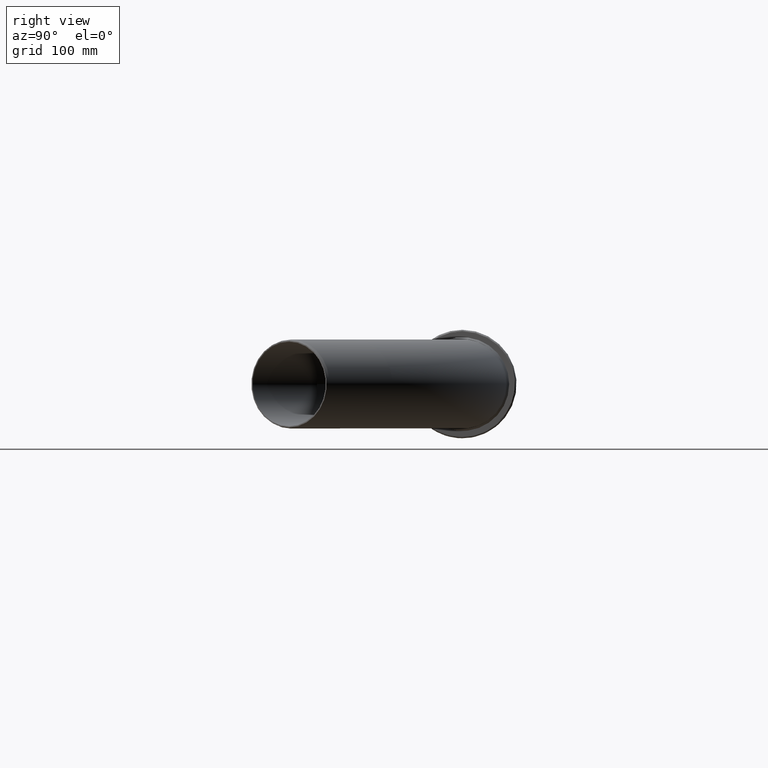
[diagram: clean part render]
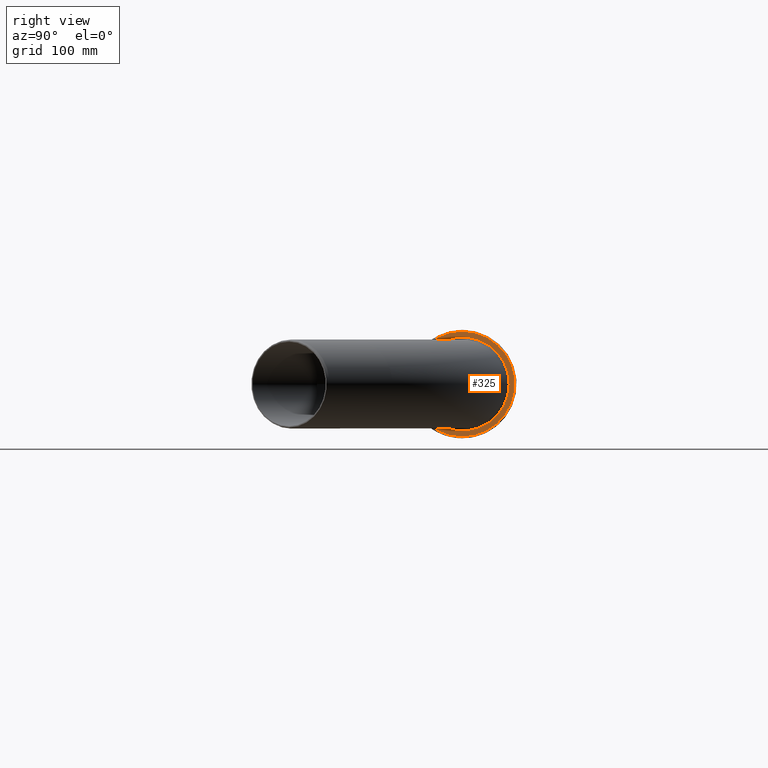
[diagram: same view with one face highlighted and labeled with its STEP entity id]
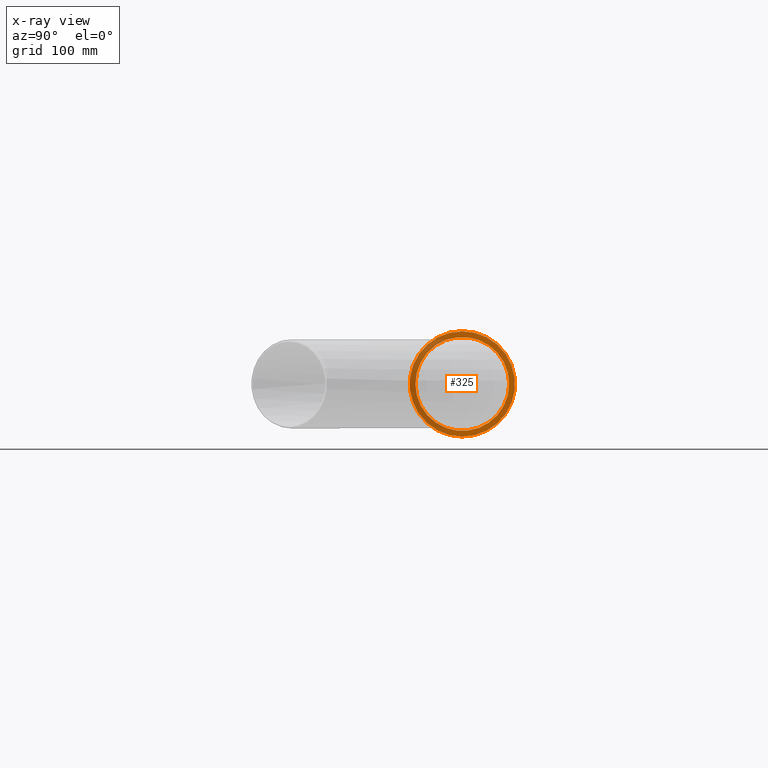
[diagram: x-ray of the same camera — body ghosted, the highlighted face saturated]
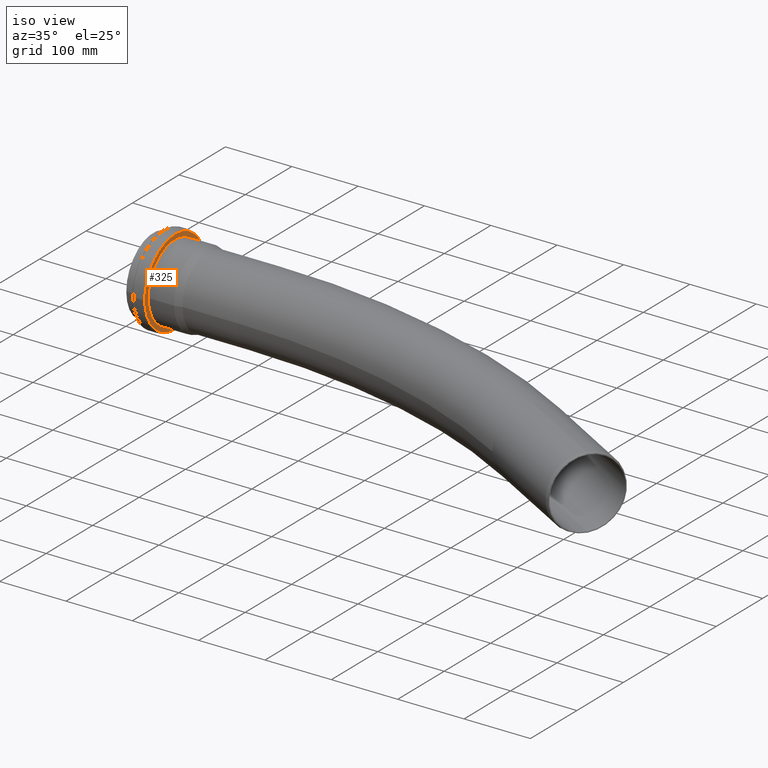
[diagram: same view with one face highlighted and labeled with its STEP entity id]
A machine part, right view. The second image highlights one B-rep face of the part: STEP entity #325.
The next image is the same camera in x-ray: the body ghosted, the highlighted face saturated — about 35% of this face is hidden behind the body in this view.
A second angle (iso view) of the same face is appended — the face is thin or edge-on in the first view.
In plain terms, the highlighted planar face has unit normal (1, 0, 0).
Its self-contained STEP definition (entity closure, byte-faithful):
#20=FACE_BOUND('',#74,.T.);
#26=PLANE('',#389);
#49=FACE_OUTER_BOUND('',#73,.T.);
#73=EDGE_LOOP('',(#263));
#74=EDGE_LOOP('',(#264));
#131=CIRCLE('',#382,65.);
#137=CIRCLE('',#390,57.9);
#161=VERTEX_POINT('',#576);
#166=VERTEX_POINT('',#590);
#194=EDGE_CURVE('',#161,#161,#131,.T.);
#201=EDGE_CURVE('',#166,#166,#137,.T.);
#263=ORIENTED_EDGE('',*,*,#194,.F.);
#264=ORIENTED_EDGE('',*,*,#201,.F.);
#325=ADVANCED_FACE('',(#49,#20),#26,.T.);
#382=AXIS2_PLACEMENT_3D('',#577,#461,#462);
#389=AXIS2_PLACEMENT_3D('',#589,#476,#477);
#390=AXIS2_PLACEMENT_3D('',#591,#478,#479);
#461=DIRECTION('center_axis',(-1.,0.,0.));
#462=DIRECTION('ref_axis',(0.,-1.,1.83697019872103E-16));
#476=DIRECTION('center_axis',(1.,0.,0.));
#477=DIRECTION('ref_axis',(0.,0.,-1.));
#478=DIRECTION('center_axis',(1.,0.,0.));
#479=DIRECTION('ref_axis',(0.,0.,-1.));
#576=CARTESIAN_POINT('',(-125.725,-7.9602041944578E-15,65.));
#577=CARTESIAN_POINT('Origin',(-125.725,0.,0.));
#589=CARTESIAN_POINT('Origin',(-125.725,57.9,0.));
#590=CARTESIAN_POINT('',(-125.725,-57.9,-7.09070496706317E-15));
#591=CARTESIAN_POINT('Origin',(-125.725,0.,0.));